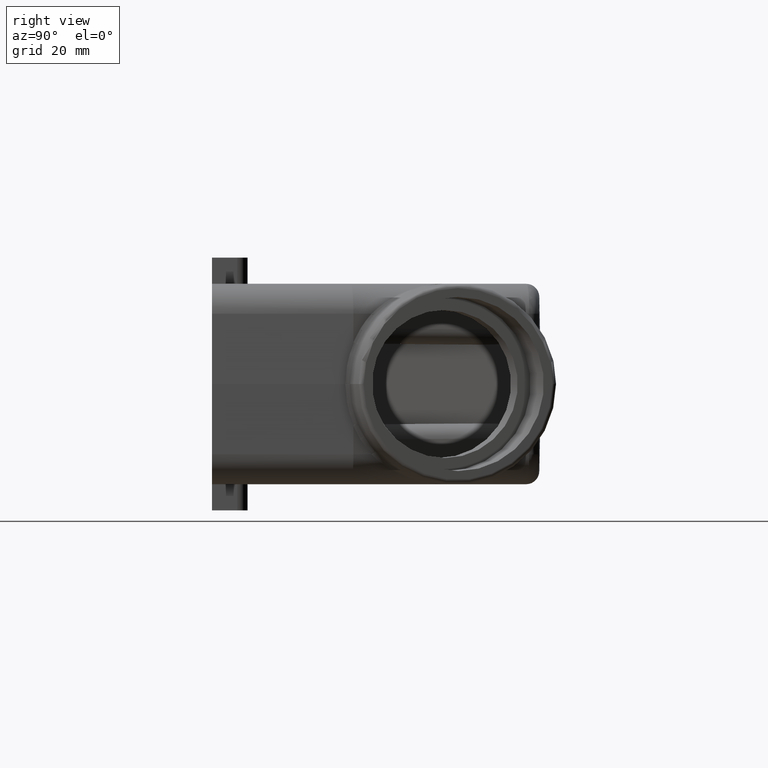
[diagram: clean part render]
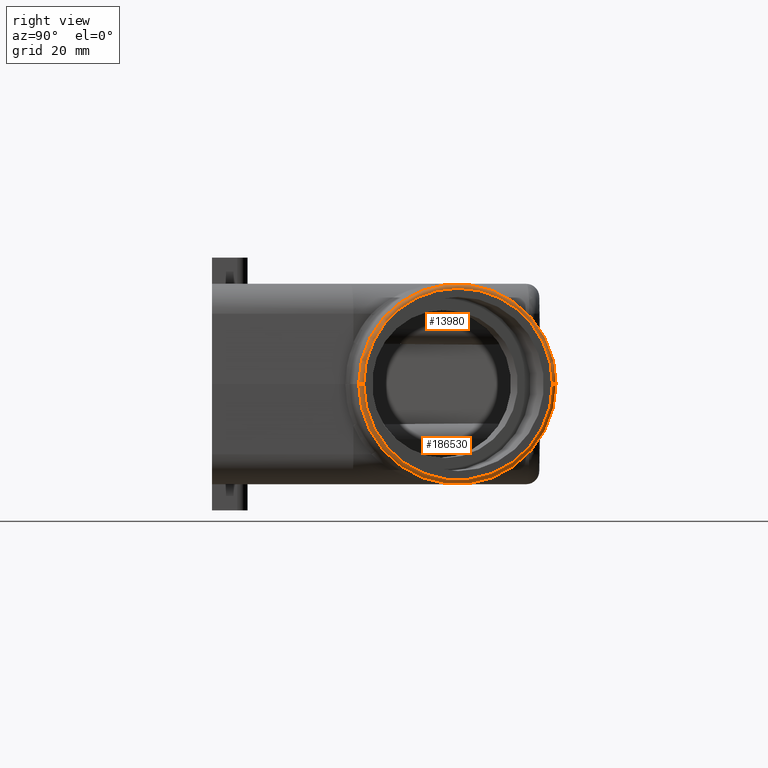
[diagram: same view with one multi-face feature highlighted, each face labeled with its STEP entity id]
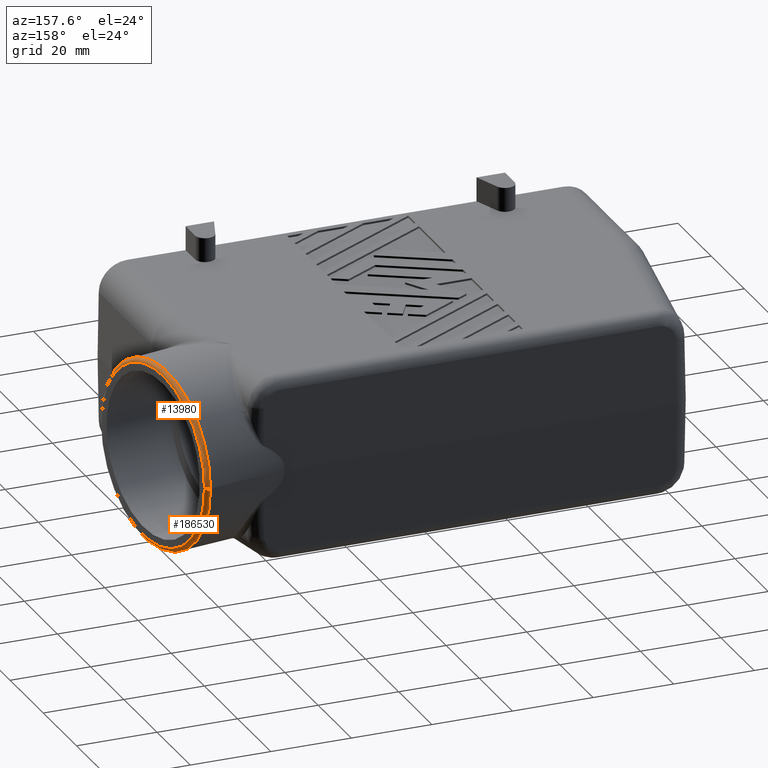
[diagram: same view with one multi-face feature highlighted, each face labeled with its STEP entity id]
A machine part, right view. The highlighted faces form ONE feature: a constant-radius fillet chain: 2 tangent blend faces with common blend radius 1 mm. The faces share edges in the B-rep.
A second angle (auxiliary view) of the same feature is appended — it is thin or edge-on in the first view.
Their STEP definitions:
[1] entity #186530 (Torus):
#13560=CARTESIAN_POINT('',(-68.9414343558764,102.092515388602,
-1.77621654271337E-14));
#13570=DIRECTION('',(1.38165264961563E-18,-2.43622640094574E-19,-1.));
#13580=DIRECTION('',(-1.,0.,-1.38165264961563E-18));
#13590=AXIS2_PLACEMENT_3D('',#13560,#13570,#13580);
#13600=CIRCLE('',#13590,1.);
#13610=CARTESIAN_POINT('',(-69.9262421088886,102.266163566269,
-1.77635683940025E-14));
#13620=VERTEX_POINT('',#13610);
#13630=CARTESIAN_POINT('',(-68.7677861782095,103.077323141614,
-1.77621654271337E-14));
#13640=VERTEX_POINT('',#13630);
#13650=EDGE_CURVE('',#13620,#13640,#13600,.T.);
#13670=CARTESIAN_POINT('',(-73.7465020175611,80.6003930000001,
-1.77635683940025E-14));
#13680=DIRECTION('',(-0.984807753012208,0.17364817766693,
-1.40296686880216E-18));
#13690=DIRECTION('',(0.17364817766693,0.984807753012208,0.));
#13700=AXIS2_PLACEMENT_3D('',#13670,#13680,#13690);
#13710=CIRCLE('',#13700,22.);
#13760=CARTESIAN_POINT('',(-77.5667619262336,58.9346224337315,
-1.77635683940025E-14));
#13770=VERTEX_POINT('',#13760);
#13800=CARTESIAN_POINT('',(-76.5819541732214,58.7609742560645,
-1.77621654271337E-14));
#13810=DIRECTION('',(-1.38165264961563E-18,2.43622640094574E-19,1.));
#13820=DIRECTION('',(-0.939692620785909,0.342020143325668,
-1.38165264961563E-18));
#13830=AXIS2_PLACEMENT_3D('',#13800,#13810,#13820);
#13840=CIRCLE('',#13830,1.);
#13850=CARTESIAN_POINT('',(-76.7556023508883,57.7761665030523,
-1.77621654271337E-14));
#13860=VERTEX_POINT('',#13850);
#13870=EDGE_CURVE('',#13770,#13860,#13840,.T.);
#13890=CARTESIAN_POINT('',(-72.7616942645489,80.4267448223331,
-1.77621654271337E-14));
#13900=DIRECTION('',(-0.984807753012208,0.17364817766693,
-1.40296686880216E-18));
#13910=DIRECTION('',(0.17364817766693,0.984807753012208,0.));
#13920=AXIS2_PLACEMENT_3D('',#13890,#13900,#13910);
#13930=CIRCLE('',#13920,23.);
#14600=EDGE_CURVE('',#13770,#13620,#13710,.T.);
#88860=EDGE_CURVE('',#13860,#13640,#13930,.T.);
#186420=CARTESIAN_POINT('',(-72.7616942645489,80.4267448223331,
-1.77621654271337E-14));
#186430=DIRECTION('',(-0.984807753012208,0.17364817766693,
-1.40296686880216E-18));
#186440=DIRECTION('',(0.17364817766693,0.984807753012208,
6.70614479986807E-33));
#186450=AXIS2_PLACEMENT_3D('',#186420,#186430,#186440);
#186460=TOROIDAL_SURFACE('',#186450,22.,1.);
#186470=ORIENTED_EDGE('',*,*,#88860,.T.);
#186480=ORIENTED_EDGE('',*,*,#13870,.T.);
#186490=ORIENTED_EDGE('',*,*,#14600,.F.);
#186500=ORIENTED_EDGE('',*,*,#13650,.F.);
#186510=EDGE_LOOP('',(#186500,#186490,#186480,#186470));
#186520=FACE_OUTER_BOUND('',#186510,.T.);
#186530=ADVANCED_FACE('',(#186520),#186460,.T.);
[2] entity #13980 (Torus):
#13510=CARTESIAN_POINT('',(-72.7616942645489,80.4267448223331,
-1.77621654271337E-14));
#13520=DIRECTION('',(-0.984807753012208,0.17364817766693,
-1.40296686880216E-18));
#13530=DIRECTION('',(0.17364817766693,0.984807753012208,
6.70614479986807E-33));
#13540=AXIS2_PLACEMENT_3D('',#13510,#13520,#13530);
#13550=TOROIDAL_SURFACE('',#13540,22.,1.);
#13560=CARTESIAN_POINT('',(-68.9414343558764,102.092515388602,
-1.77621654271337E-14));
#13570=DIRECTION('',(1.38165264961563E-18,-2.43622640094574E-19,-1.));
#13580=DIRECTION('',(-1.,0.,-1.38165264961563E-18));
#13590=AXIS2_PLACEMENT_3D('',#13560,#13570,#13580);
#13600=CIRCLE('',#13590,1.);
#13610=CARTESIAN_POINT('',(-69.9262421088886,102.266163566269,
-1.77635683940025E-14));
#13620=VERTEX_POINT('',#13610);
#13630=CARTESIAN_POINT('',(-68.7677861782095,103.077323141614,
-1.77621654271337E-14));
#13640=VERTEX_POINT('',#13630);
#13650=EDGE_CURVE('',#13620,#13640,#13600,.T.);
#13660=ORIENTED_EDGE('',*,*,#13650,.T.);
#13670=CARTESIAN_POINT('',(-73.7465020175611,80.6003930000001,
-1.77635683940025E-14));
#13680=DIRECTION('',(-0.984807753012208,0.17364817766693,
-1.40296686880216E-18));
#13690=DIRECTION('',(0.17364817766693,0.984807753012208,0.));
#13700=AXIS2_PLACEMENT_3D('',#13670,#13680,#13690);
#13710=CIRCLE('',#13700,22.);
#13720=CARTESIAN_POINT('',(-73.7465020175611,80.6003930000001,-22.));
#13730=VERTEX_POINT('',#13720);
#13740=EDGE_CURVE('',#13620,#13730,#13710,.T.);
#13750=ORIENTED_EDGE('',*,*,#13740,.F.);
#13760=CARTESIAN_POINT('',(-77.5667619262336,58.9346224337315,
-1.77635683940025E-14));
#13770=VERTEX_POINT('',#13760);
#13780=EDGE_CURVE('',#13730,#13770,#13710,.T.);
#13790=ORIENTED_EDGE('',*,*,#13780,.F.);
#13800=CARTESIAN_POINT('',(-76.5819541732214,58.7609742560645,
-1.77621654271337E-14));
#13810=DIRECTION('',(-1.38165264961563E-18,2.43622640094574E-19,1.));
#13820=DIRECTION('',(-0.939692620785909,0.342020143325668,
-1.38165264961563E-18));
#13830=AXIS2_PLACEMENT_3D('',#13800,#13810,#13820);
#13840=CIRCLE('',#13830,1.);
#13850=CARTESIAN_POINT('',(-76.7556023508883,57.7761665030523,
-1.77621654271337E-14));
#13860=VERTEX_POINT('',#13850);
#13870=EDGE_CURVE('',#13770,#13860,#13840,.T.);
#13880=ORIENTED_EDGE('',*,*,#13870,.F.);
#13890=CARTESIAN_POINT('',(-72.7616942645489,80.4267448223331,
-1.77621654271337E-14));
#13900=DIRECTION('',(-0.984807753012208,0.17364817766693,
-1.40296686880216E-18));
#13910=DIRECTION('',(0.17364817766693,0.984807753012208,0.));
#13920=AXIS2_PLACEMENT_3D('',#13890,#13900,#13910);
#13930=CIRCLE('',#13920,23.);
#13940=EDGE_CURVE('',#13640,#13860,#13930,.T.);
#13950=ORIENTED_EDGE('',*,*,#13940,.T.);
#13960=EDGE_LOOP('',(#13950,#13880,#13790,#13750,#13660));
#13970=FACE_OUTER_BOUND('',#13960,.T.);
#13980=ADVANCED_FACE('',(#13970),#13550,.T.);